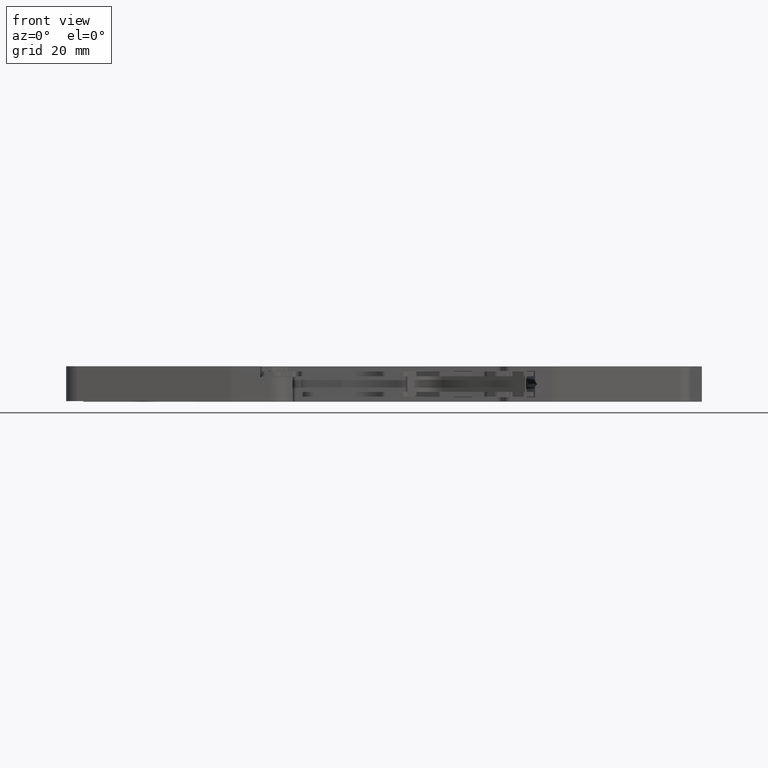
[diagram: clean part render]
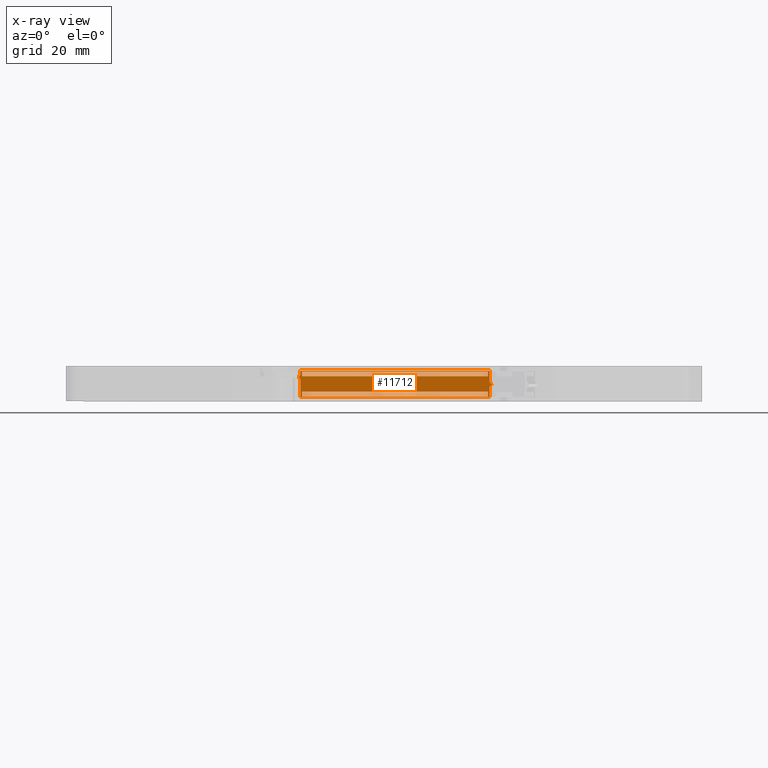
[diagram: x-ray — body ghosted, one internal face saturated and labeled with its STEP entity id]
A machine part, front view, then the same camera in x-ray: the body is ghosted and one INTERNAL B-rep face — a face not visible from any outside direction — is saturated and labeled: STEP entity #11712.
In plain terms, the highlighted planar face has unit normal (0, 1, 0).
Its self-contained STEP definition (entity closure, byte-faithful):
#10 = B_SPLINE_CURVE_WITH_KNOTS ( 'NONE', 3,
 ( #23698, #23703, #23699, #23708, #23690, #23692, #23695 ),
 .UNSPECIFIED., .F., .F.,
 ( 4, 3, 4 ),
 ( 0.001915896539588750200, 0.002305922957439630800, 0.002493242803244612000 ),
 .UNSPECIFIED. ) ;
#21 = B_SPLINE_CURVE_WITH_KNOTS ( 'NONE', 3,
 ( #23893, #23880, #23894, #23868, #23895, #23857, #23901, #23896, #23888, #23858 ),
 .UNSPECIFIED., .F., .F.,
 ( 4, 3, 3, 4 ),
 ( 0.001448089528857899600, 0.001675734523187335400, 0.001953236722851615100, 0.002141056293200762400 ),
 .UNSPECIFIED. ) ;
#4309 = EDGE_LOOP ( 'NONE', ( #13033, #12977, #13015, #12935 ) ) ;
#8498 = VERTEX_POINT ( 'NONE', #19136 ) ;
#8510 = VERTEX_POINT ( 'NONE', #19140 ) ;
#8513 = VERTEX_POINT ( 'NONE', #19093 ) ;
#8522 = VERTEX_POINT ( 'NONE', #19166 ) ;
#8531 = VERTEX_POINT ( 'NONE', #19189 ) ;
#8536 = VERTEX_POINT ( 'NONE', #19197 ) ;
#8566 = VERTEX_POINT ( 'NONE', #19204 ) ;
#8568 = VERTEX_POINT ( 'NONE', #19152 ) ;
#8569 = VERTEX_POINT ( 'NONE', #19155 ) ;
#8570 = VERTEX_POINT ( 'NONE', #19153 ) ;
#8578 = VERTEX_POINT ( 'NONE', #19163 ) ;
#8600 = VERTEX_POINT ( 'NONE', #19220 ) ;
#8604 = VERTEX_POINT ( 'NONE', #19259 ) ;
#8609 = VERTEX_POINT ( 'NONE', #19260 ) ;
#8610 = VERTEX_POINT ( 'NONE', #19211 ) ;
#8612 = VERTEX_POINT ( 'NONE', #19212 ) ;
#8615 = VERTEX_POINT ( 'NONE', #19252 ) ;
#8621 = VERTEX_POINT ( 'NONE', #19213 ) ;
#8623 = VERTEX_POINT ( 'NONE', #19253 ) ;
#9166 = EDGE_LOOP ( 'NONE', ( #13019, #12997, #12982, #12921 ) ) ;
#9170 = EDGE_LOOP ( 'NONE', ( #12987, #12959, #13038, #13030, #12986, #12994, #13011, #12936, #13004, #13020, #13025 ) ) ;
#11503 = EDGE_CURVE ( 'NONE', #8615, #8621, #23673, .T. ) ;
#11509 = EDGE_CURVE ( 'NONE', #8610, #8510, #10, .T. ) ;
#11513 = EDGE_CURVE ( 'NONE', #8569, #8623, #23739, .T. ) ;
#11526 = EDGE_CURVE ( 'NONE', #8510, #8612, #23747, .T. ) ;
#11531 = EDGE_CURVE ( 'NONE', #8615, #8498, #23785, .T. ) ;
#11534 = EDGE_CURVE ( 'NONE', #8513, #8531, #23797, .T. ) ;
#11540 = EDGE_CURVE ( 'NONE', #8522, #8566, #23769, .T. ) ;
#11541 = EDGE_CURVE ( 'NONE', #8623, #8513, #23786, .T. ) ;
#11545 = EDGE_CURVE ( 'NONE', #8522, #8536, #23840, .T. ) ;
#11552 = EDGE_CURVE ( 'NONE', #8609, #8566, #23846, .T. ) ;
#11553 = EDGE_CURVE ( 'NONE', #8610, #8536, #23825, .T. ) ;
#11554 = EDGE_CURVE ( 'NONE', #8600, #8498, #23844, .T. ) ;
#11563 = EDGE_CURVE ( 'NONE', #8612, #8569, #21, .T. ) ;
#11565 = EDGE_CURVE ( 'NONE', #8531, #8609, #23870, .T. ) ;
#11567 = EDGE_CURVE ( 'NONE', #8600, #8621, #23886, .T. ) ;
#11572 = EDGE_CURVE ( 'NONE', #8578, #8604, #23911, .T. ) ;
#11583 = EDGE_CURVE ( 'NONE', #8568, #8604, #23968, .T. ) ;
#11603 = EDGE_CURVE ( 'NONE', #8578, #8570, #24005, .T. ) ;
#11622 = EDGE_CURVE ( 'NONE', #8568, #8570, #24119, .T. ) ;
#11712 = ADVANCED_FACE ( 'NONE', ( #23515, #23518, #23479 ), #23507, .T. ) ;
#12921 = ORIENTED_EDGE ( 'NONE', *, *, #11554, .T. ) ;
#12935 = ORIENTED_EDGE ( 'NONE', *, *, #11583, .T. ) ;
#12936 = ORIENTED_EDGE ( 'NONE', *, *, #11565, .T. ) ;
#12959 = ORIENTED_EDGE ( 'NONE', *, *, #11509, .T. ) ;
#12977 = ORIENTED_EDGE ( 'NONE', *, *, #11603, .T. ) ;
#12982 = ORIENTED_EDGE ( 'NONE', *, *, #11567, .F. ) ;
#12986 = ORIENTED_EDGE ( 'NONE', *, *, #11513, .T. ) ;
#12987 = ORIENTED_EDGE ( 'NONE', *, *, #11553, .F. ) ;
#12994 = ORIENTED_EDGE ( 'NONE', *, *, #11541, .T. ) ;
#12997 = ORIENTED_EDGE ( 'NONE', *, *, #11503, .T. ) ;
#13004 = ORIENTED_EDGE ( 'NONE', *, *, #11552, .T. ) ;
#13011 = ORIENTED_EDGE ( 'NONE', *, *, #11534, .T. ) ;
#13015 = ORIENTED_EDGE ( 'NONE', *, *, #11622, .F. ) ;
#13019 = ORIENTED_EDGE ( 'NONE', *, *, #11531, .F. ) ;
#13020 = ORIENTED_EDGE ( 'NONE', *, *, #11540, .F. ) ;
#13025 = ORIENTED_EDGE ( 'NONE', *, *, #11545, .T. ) ;
#13030 = ORIENTED_EDGE ( 'NONE', *, *, #11563, .T. ) ;
#13033 = ORIENTED_EDGE ( 'NONE', *, *, #11572, .F. ) ;
#13038 = ORIENTED_EDGE ( 'NONE', *, *, #11526, .T. ) ;
#19093 = CARTESIAN_POINT ( 'NONE',  ( 243.2775517357700000, 17.95365339502480500, 0.7099999999999953000 ) ) ;
#19136 = CARTESIAN_POINT ( 'NONE',  ( 243.5275522423587500, 17.95365339502480100, 0.8000000000057728700 ) ) ;
#19140 = CARTESIAN_POINT ( 'NONE',  ( 275.0662359868832700, 17.95365339502480100, 2.899999999999999900 ) ) ;
#19152 = CARTESIAN_POINT ( 'NONE',  ( 274.5275527761639300, 17.95365339502480100, 5.000000000005985400 ) ) ;
#19153 = CARTESIAN_POINT ( 'NONE',  ( 274.5275527761635900, 17.95365339502480100, 4.200000000013549300 ) ) ;
#19155 = CARTESIAN_POINT ( 'NONE',  ( 274.7775593221097700, 17.95365339502480100, 2.409999999999995700 ) ) ;
#19163 = CARTESIAN_POINT ( 'NONE',  ( 243.5275522424020900, 17.95365339502480100, 4.200000000013334400 ) ) ;
#19166 = CARTESIAN_POINT ( 'NONE',  ( 243.2775517357700000, 17.95365339502480100, 5.100000000000000500 ) ) ;
#19189 = CARTESIAN_POINT ( 'NONE',  ( 243.2775517357700000, 17.95365339502480500, 3.560000000013320100 ) ) ;
#19197 = CARTESIAN_POINT ( 'NONE',  ( 274.7775593221097700, 17.95365339502480100, 5.100000000000000500 ) ) ;
#19204 = CARTESIAN_POINT ( 'NONE',  ( 243.2775517357700000, 17.95365339502480100, 4.550001551496639400 ) ) ;
#19211 = CARTESIAN_POINT ( 'NONE',  ( 274.7775593221097700, 17.95365339502480100, 3.399999999999930200 ) ) ;
#19212 = CARTESIAN_POINT ( 'NONE',  ( 275.2675623186218600, 17.95365339502480100, 2.899999999999999900 ) ) ;
#19213 = CARTESIAN_POINT ( 'NONE',  ( 274.5275527761641600, 17.95365339502479800, 1.599999999998430200 ) ) ;
#19220 = CARTESIAN_POINT ( 'NONE',  ( 243.5275522424017800, 17.95365339502479800, 1.599999999998210000 ) ) ;
#19252 = CARTESIAN_POINT ( 'NONE',  ( 274.5275527761209000, 17.95365339502480100, 0.8000000000059888100 ) ) ;
#19253 = CARTESIAN_POINT ( 'NONE',  ( 274.7775593221097700, 17.95365339502480100, 0.7099999999999953000 ) ) ;
#19259 = CARTESIAN_POINT ( 'NONE',  ( 243.5275522424020900, 17.95365339502480100, 5.000000000005773200 ) ) ;
#19260 = CARTESIAN_POINT ( 'NONE',  ( 242.9917629046464600, 17.95365339502480100, 4.055000775755019900 ) ) ;
#20381 = AXIS2_PLACEMENT_3D ( 'NONE', #23523, #23489, #23480 ) ;
#21276 = VECTOR ( 'NONE', #23707, 1000.000000000000000 ) ;
#21304 = VECTOR ( 'NONE', #23755, 1000.000000000000000 ) ;
#21331 = VECTOR ( 'NONE', #23819, 1000.000000000000000 ) ;
#21337 = VECTOR ( 'NONE', #23878, 999.9999999999998900 ) ;
#21348 = VECTOR ( 'NONE', #23759, 1000.000000000000000 ) ;
#21363 = VECTOR ( 'NONE', #23789, 1000.000000000000000 ) ;
#21365 = VECTOR ( 'NONE', #23802, 1000.000000000000000 ) ;
#21368 = VECTOR ( 'NONE', #23863, 1000.000000000000000 ) ;
#21369 = VECTOR ( 'NONE', #23917, 1000.000000000000000 ) ;
#21370 = VECTOR ( 'NONE', #23814, 1000.000000000000000 ) ;
#21374 = VECTOR ( 'NONE', #23810, 1000.000000000000000 ) ;
#21376 = VECTOR ( 'NONE', #23805, 1000.000000000000000 ) ;
#21383 = VECTOR ( 'NONE', #23853, 1000.000000000000200 ) ;
#21387 = VECTOR ( 'NONE', #23837, 1000.000000000000000 ) ;
#21398 = VECTOR ( 'NONE', #24002, 1000.000000000000000 ) ;
#21406 = VECTOR ( 'NONE', #24137, 1000.000000000000000 ) ;
#21412 = VECTOR ( 'NONE', #24008, 1000.000000000000000 ) ;
#23479 = FACE_BOUND ( 'NONE', #9166, .T. ) ;
#23480 = DIRECTION ( 'NONE',  ( 0.0000000000000000000, -0.0000000000000000000, 1.000000000000000000 ) ) ;
#23489 = DIRECTION ( 'NONE',  ( 0.0000000000000000000, 1.000000000000000000, 0.0000000000000000000 ) ) ;
#23507 = PLANE ( 'NONE',  #20381 ) ;
#23515 = FACE_BOUND ( 'NONE', #4309, .T. ) ;
#23518 = FACE_OUTER_BOUND ( 'NONE', #9170, .T. ) ;
#23523 = CARTESIAN_POINT ( 'NONE',  ( 236.6775540995990400, 17.95365339502480100, -52.19549897245421000 ) ) ;
#23673 = LINE ( 'NONE', #23712, #21276 ) ;
#23690 = CARTESIAN_POINT ( 'NONE',  ( 275.0037933664434600, 17.95365339502480100, 3.008153129455767100 ) ) ;
#23692 = CARTESIAN_POINT ( 'NONE',  ( 275.0350134794367700, 17.95365339502480100, 2.954078627830122100 ) ) ;
#23695 = CARTESIAN_POINT ( 'NONE',  ( 275.0662359868832700, 17.95365339502480100, 2.899999999999999900 ) ) ;
#23698 = CARTESIAN_POINT ( 'NONE',  ( 274.7775593221097700, 17.95365339502480100, 3.399999999999930200 ) ) ;
#23699 = CARTESIAN_POINT ( 'NONE',  ( 274.9075685851821000, 17.95365339502480100, 3.174818406582703600 ) ) ;
#23703 = CARTESIAN_POINT ( 'NONE',  ( 274.8425639420655100, 17.95365339502480100, 3.287409196605316300 ) ) ;
#23707 = DIRECTION ( 'NONE',  ( -1.247812842133565800E-013, 0.0000000000000000000, 1.000000000000000000 ) ) ;
#23708 = CARTESIAN_POINT ( 'NONE',  ( 274.9725732610697300, 17.95365339502480100, 3.062227635480556200 ) ) ;
#23712 = CARTESIAN_POINT ( 'NONE',  ( 274.5275527761207900, 17.95365339502480100, 1.799999999998430000 ) ) ;
#23728 = CARTESIAN_POINT ( 'NONE',  ( 274.7775593221097700, 17.95365339502480100, -49.66713354853190100 ) ) ;
#23739 = LINE ( 'NONE', #23728, #21304 ) ;
#23747 = LINE ( 'NONE', #23803, #21376 ) ;
#23755 = DIRECTION ( 'NONE',  ( -0.0000000000000000000, -0.0000000000000000000, -1.000000000000000000 ) ) ;
#23759 = DIRECTION ( 'NONE',  ( -1.000000000000000000, 0.0000000000000000000, -6.982962677686270700E-015 ) ) ;
#23769 = LINE ( 'NONE', #23793, #21365 ) ;
#23779 = CARTESIAN_POINT ( 'NONE',  ( 274.5275527761120300, 17.95365339502479800, 0.8000000000059890300 ) ) ;
#23780 = CARTESIAN_POINT ( 'NONE',  ( 243.2775517357700000, 17.95365339502480500, -49.66713354853190100 ) ) ;
#23785 = LINE ( 'NONE', #23779, #21348 ) ;
#23786 = LINE ( 'NONE', #23830, #21374 ) ;
#23789 = DIRECTION ( 'NONE',  ( 0.0000000000000000000, 0.0000000000000000000, 1.000000000000000000 ) ) ;
#23793 = CARTESIAN_POINT ( 'NONE',  ( 243.2775517357700000, 17.95365339502480100, 5.100000000000000500 ) ) ;
#23797 = LINE ( 'NONE', #23780, #21363 ) ;
#23802 = DIRECTION ( 'NONE',  ( 0.0000000000000000000, 0.0000000000000000000, -1.000000000000000000 ) ) ;
#23803 = CARTESIAN_POINT ( 'NONE',  ( 307.1275644423635100, 17.95365339502480100, 2.899999999999999900 ) ) ;
#23805 = DIRECTION ( 'NONE',  ( 1.000000000000000000, 0.0000000000000000000, 0.0000000000000000000 ) ) ;
#23809 = CARTESIAN_POINT ( 'NONE',  ( 243.2775517357700000, 17.95365339502480100, 4.550001551496639400 ) ) ;
#23810 = DIRECTION ( 'NONE',  ( -1.000000000000000000, 0.0000000000000000000, 0.0000000000000000000 ) ) ;
#23813 = CARTESIAN_POINT ( 'NONE',  ( 274.7775593221097700, 17.95365339502480100, 16.81349773167510300 ) ) ;
#23814 = DIRECTION ( 'NONE',  ( -0.0000000000000000000, -0.0000000000000000000, 1.000000000000000000 ) ) ;
#23819 = DIRECTION ( 'NONE',  ( -5.191619809052710000E-014, 0.0000000000000000000, -1.000000000000000000 ) ) ;
#23825 = LINE ( 'NONE', #23813, #21370 ) ;
#23827 = CARTESIAN_POINT ( 'NONE',  ( 243.5275522423588100, 17.95365339502480100, 1.799999999998215000 ) ) ;
#23830 = CARTESIAN_POINT ( 'NONE',  ( 0.0000000000000000000, 17.95365339502480100, 0.7099999999999953000 ) ) ;
#23834 = CARTESIAN_POINT ( 'NONE',  ( 276.5775513110844500, 17.95365339502480100, 5.100000000000000500 ) ) ;
#23837 = DIRECTION ( 'NONE',  ( 1.000000000000000000, 0.0000000000000000000, 0.0000000000000000000 ) ) ;
#23840 = LINE ( 'NONE', #23834, #21387 ) ;
#23844 = LINE ( 'NONE', #23827, #21331 ) ;
#23846 = LINE ( 'NONE', #23809, #21383 ) ;
#23853 = DIRECTION ( 'NONE',  ( 0.5000000000000378600, -0.0000000000000000000, 0.8660254037844168400 ) ) ;
#23857 = CARTESIAN_POINT ( 'NONE',  ( 274.9757761984348000, 17.95365339502480100, 2.608215898836282700 ) ) ;
#23858 = CARTESIAN_POINT ( 'NONE',  ( 274.7775593221097700, 17.95365339502480100, 2.409999999999995700 ) ) ;
#23861 = CARTESIAN_POINT ( 'NONE',  ( 243.5275522423500000, 17.95365339502479800, 1.599999999998210000 ) ) ;
#23863 = DIRECTION ( 'NONE',  ( 1.000000000000000000, 0.0000000000000000000, 6.982962677686270700E-015 ) ) ;
#23868 = CARTESIAN_POINT ( 'NONE',  ( 275.1065923971278300, 17.95365339502480100, 2.739031283073852100 ) ) ;
#23870 = LINE ( 'NONE', #23871, #21337 ) ;
#23871 = CARTESIAN_POINT ( 'NONE',  ( 243.2775517357700000, 17.95365339502480500, 3.560000000013320100 ) ) ;
#23878 = DIRECTION ( 'NONE',  ( -0.4999999999999770200, 0.0000000000000000000, 0.8660254037844520300 ) ) ;
#23880 = CARTESIAN_POINT ( 'NONE',  ( 275.2139056534548400, 17.95365339502480100, 2.846343785693834100 ) ) ;
#23886 = LINE ( 'NONE', #23861, #21368 ) ;
#23888 = CARTESIAN_POINT ( 'NONE',  ( 274.8218289179049000, 17.95365339502480100, 2.454269398770237300 ) ) ;
#23893 = CARTESIAN_POINT ( 'NONE',  ( 275.2675623186218600, 17.95365339502480100, 2.899999999999999900 ) ) ;
#23894 = CARTESIAN_POINT ( 'NONE',  ( 275.1602490156563500, 17.95365339502480100, 2.792687544018863700 ) ) ;
#23895 = CARTESIAN_POINT ( 'NONE',  ( 275.0411842834457700, 17.95365339502480100, 2.673623605290751400 ) ) ;
#23896 = CARTESIAN_POINT ( 'NONE',  ( 274.8660985209223800, 17.95365339502480100, 2.498538790318050500 ) ) ;
#23901 = CARTESIAN_POINT ( 'NONE',  ( 274.9103681330376500, 17.95365339502480100, 2.542808172768036700 ) ) ;
#23911 = LINE ( 'NONE', #23926, #21369 ) ;
#23917 = DIRECTION ( 'NONE',  ( -6.982962677686270700E-015, 0.0000000000000000000, 1.000000000000000000 ) ) ;
#23926 = CARTESIAN_POINT ( 'NONE',  ( 243.5275522424020700, 17.95365339502480100, -88.67389703733650200 ) ) ;
#23968 = LINE ( 'NONE', #23970, #21398 ) ;
#23970 = CARTESIAN_POINT ( 'NONE',  ( 301.7678050641924900, 17.95365339502480100, 5.000000000006179900 ) ) ;
#24002 = DIRECTION ( 'NONE',  ( -1.000000000000000000, 0.0000000000000000000, -6.982962677686270700E-015 ) ) ;
#24005 = LINE ( 'NONE', #24035, #21412 ) ;
#24008 = DIRECTION ( 'NONE',  ( 1.000000000000000000, 0.0000000000000000000, 6.982962677686270700E-015 ) ) ;
#24035 = CARTESIAN_POINT ( 'NONE',  ( 238.5275600513209900, 17.95365339502480100, 4.200000000013299800 ) ) ;
#24119 = LINE ( 'NONE', #24129, #21406 ) ;
#24129 = CARTESIAN_POINT ( 'NONE',  ( 274.5275527761646100, 17.95365339502480100, -88.67389703733630300 ) ) ;
#24137 = DIRECTION ( 'NONE',  ( 6.982962677686290400E-015, 0.0000000000000000000, -1.000000000000000000 ) ) ;